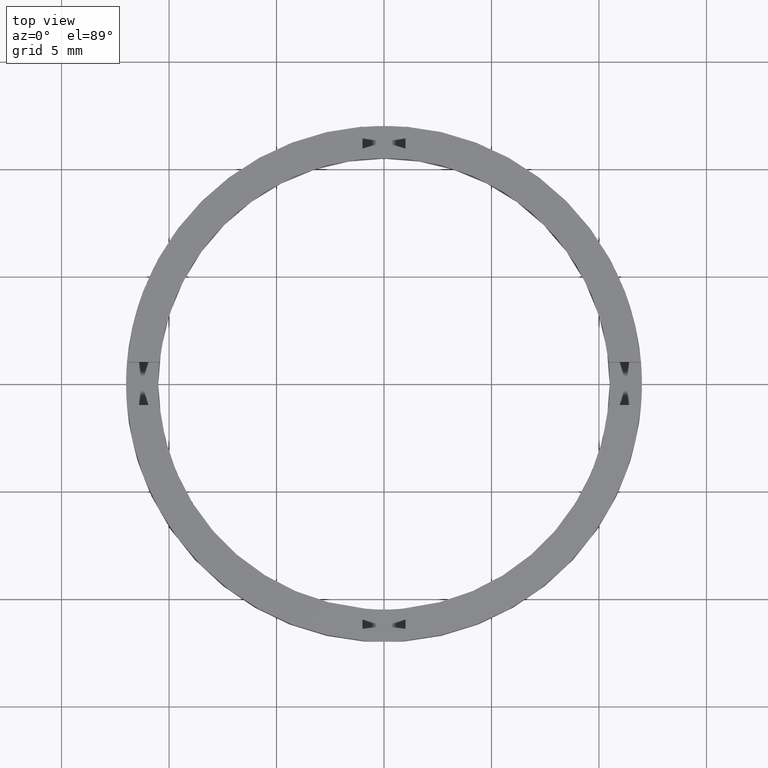
[diagram: clean part render]
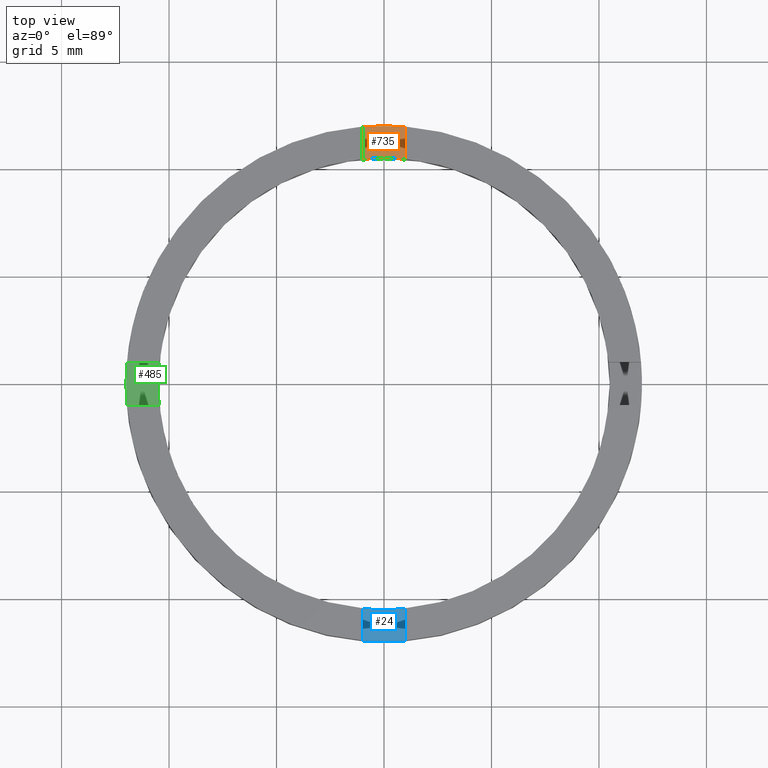
[diagram: same view with three faces highlighted in distinct colors, each labeled with its STEP entity id]
A machine part, top view with three faces highlighted in distinct colors.
Their STEP definitions:

[orange] entity #735 — the highlighted planar face has unit normal (0, -0, 1).
#1 = DIRECTION ( 'NONE',  ( 0.000000000000000000, -0.000000000000000000, 1.000000000000000000 ) ) ;
#17 = CIRCLE ( 'NONE', #315, 10.49999999999999822 ) ;
#49 = EDGE_CURVE ( 'NONE', #216, #81, #663, .T. ) ;
#58 = CARTESIAN_POINT ( 'NONE',  ( 0.9999999999999754641, 2.000000000000001776, 1.500000000000000000 ) ) ;
#61 = CARTESIAN_POINT ( 'NONE',  ( -1.000000000000024425, 10.45227248018343325, 1.500000000000000000 ) ) ;
#74 = AXIS2_PLACEMENT_3D ( 'NONE', #495, #1, #499 ) ;
#81 = VERTEX_POINT ( 'NONE', #611 ) ;
#87 = DIRECTION ( 'NONE',  ( -0.000000000000000000, -1.000000000000000000, -0.000000000000000000 ) ) ;
#97 = VERTEX_POINT ( 'NONE', #61 ) ;
#98 = DIRECTION ( 'NONE',  ( 1.000000000000000000, 0.000000000000000000, 0.000000000000000000 ) ) ;
#162 = VECTOR ( 'NONE', #317, 1000.000000000000000 ) ;
#167 = CARTESIAN_POINT ( 'NONE',  ( 0.000000000000000000, 0.000000000000000000, 1.500000000000000000 ) ) ;
#199 = CARTESIAN_POINT ( 'NONE',  ( -1.000000000000024425, 2.000000000000001776, 1.500000000000000000 ) ) ;
#216 = VERTEX_POINT ( 'NONE', #217 ) ;
#217 = CARTESIAN_POINT ( 'NONE',  ( 0.9999999999999754641, 10.45227248018343680, 1.500000000000000000 ) ) ;
#315 = AXIS2_PLACEMENT_3D ( 'NONE', #167, #493, #98 ) ;
#317 = DIRECTION ( 'NONE',  ( 0.000000000000000000, 1.000000000000000000, 0.000000000000000000 ) ) ;
#328 = DIRECTION ( 'NONE',  ( 0.000000000000000000, -0.000000000000000000, 1.000000000000000000 ) ) ;
#340 = ORIENTED_EDGE ( 'NONE', *, *, #49, .T. ) ;
#355 = ORIENTED_EDGE ( 'NONE', *, *, #486, .T. ) ;
#359 = ORIENTED_EDGE ( 'NONE', *, *, #541, .T. ) ;
#416 = CARTESIAN_POINT ( 'NONE',  ( -1.000000000000024425, 11.95826074310139830, 1.500000000000000000 ) ) ;
#427 = VECTOR ( 'NONE', #87, 1000.000000000000000 ) ;
#433 = PLANE ( 'NONE',  #74 ) ;
#486 = EDGE_CURVE ( 'NONE', #719, #97, #687, .T. ) ;
#493 = DIRECTION ( 'NONE',  ( 0.000000000000000000, -0.000000000000000000, 1.000000000000000000 ) ) ;
#495 = CARTESIAN_POINT ( 'NONE',  ( 0.000000000000000000, 0.000000000000000000, 1.500000000000000000 ) ) ;
#499 = DIRECTION ( 'NONE',  ( 1.000000000000000000, 0.000000000000000000, -0.000000000000000000 ) ) ;
#514 = ORIENTED_EDGE ( 'NONE', *, *, #679, .F. ) ;
#541 = EDGE_CURVE ( 'NONE', #81, #719, #697, .T. ) ;
#552 = AXIS2_PLACEMENT_3D ( 'NONE', #725, #328, #775 ) ;
#555 = FACE_OUTER_BOUND ( 'NONE', #709, .T. ) ;
#611 = CARTESIAN_POINT ( 'NONE',  ( 0.9999999999999754641, 11.95826074310140363, 1.500000000000000000 ) ) ;
#663 = LINE ( 'NONE', #58, #162 ) ;
#679 = EDGE_CURVE ( 'NONE', #216, #97, #17, .T. ) ;
#687 = LINE ( 'NONE', #199, #427 ) ;
#697 = CIRCLE ( 'NONE', #552, 12.00000000000000178 ) ;
#709 = EDGE_LOOP ( 'NONE', ( #359, #355, #514, #340 ) ) ;
#719 = VERTEX_POINT ( 'NONE', #416 ) ;
#725 = CARTESIAN_POINT ( 'NONE',  ( 0.000000000000000000, 0.000000000000000000, 1.500000000000000000 ) ) ;
#735 = ADVANCED_FACE ( 'NONE', ( #555 ), #433, .T. ) ;
#775 = DIRECTION ( 'NONE',  ( 1.000000000000000000, 0.000000000000000000, 0.000000000000000000 ) ) ;

[blue] entity #24 — the highlighted planar face has unit normal (-0, 0, 1).
#10 = VERTEX_POINT ( 'NONE', #75 ) ;
#24 = ADVANCED_FACE ( 'NONE', ( #681 ), #506, .T. ) ;
#52 = DIRECTION ( 'NONE',  ( 1.000000000000000000, 0.000000000000000000, 0.000000000000000000 ) ) ;
#75 = CARTESIAN_POINT ( 'NONE',  ( 0.9999999999998361311, -10.45227248018345101, 1.500000000000000000 ) ) ;
#79 = CARTESIAN_POINT ( 'NONE',  ( -1.000000000000163869, -10.45227248018341903, 1.500000000000000000 ) ) ;
#80 = EDGE_CURVE ( 'NONE', #114, #352, #141, .T. ) ;
#106 = CARTESIAN_POINT ( 'NONE',  ( 0.9999999999998363531, -11.95826074310141429, 1.500000000000000000 ) ) ;
#110 = ORIENTED_EDGE ( 'NONE', *, *, #727, .T. ) ;
#114 = VERTEX_POINT ( 'NONE', #570 ) ;
#138 = AXIS2_PLACEMENT_3D ( 'NONE', #548, #738, #52 ) ;
#141 = CIRCLE ( 'NONE', #654, 12.00000000000000178 ) ;
#211 = DIRECTION ( 'NONE',  ( -0.000000000000000000, 0.000000000000000000, 1.000000000000000000 ) ) ;
#251 = CARTESIAN_POINT ( 'NONE',  ( -1.000000000000164979, -2.000000000000182077, 1.500000000000000000 ) ) ;
#277 = DIRECTION ( 'NONE',  ( -0.000000000000000000, 0.000000000000000000, 1.000000000000000000 ) ) ;
#281 = EDGE_CURVE ( 'NONE', #455, #10, #389, .T. ) ;
#295 = VECTOR ( 'NONE', #338, 1000.000000000000000 ) ;
#300 = LINE ( 'NONE', #730, #295 ) ;
#336 = EDGE_CURVE ( 'NONE', #455, #114, #662, .T. ) ;
#338 = DIRECTION ( 'NONE',  ( -1.301042606982605567E-16, 1.000000000000000000, -0.000000000000000000 ) ) ;
#352 = VERTEX_POINT ( 'NONE', #106 ) ;
#389 = CIRCLE ( 'NONE', #138, 10.49999999999999822 ) ;
#428 = AXIS2_PLACEMENT_3D ( 'NONE', #686, #211, #601 ) ;
#438 = ORIENTED_EDGE ( 'NONE', *, *, #281, .F. ) ;
#455 = VERTEX_POINT ( 'NONE', #79 ) ;
#503 = EDGE_LOOP ( 'NONE', ( #608, #110, #438, #621 ) ) ;
#506 = PLANE ( 'NONE',  #428 ) ;
#513 = CARTESIAN_POINT ( 'NONE',  ( 0.000000000000000000, 0.000000000000000000, 1.500000000000000000 ) ) ;
#548 = CARTESIAN_POINT ( 'NONE',  ( 0.000000000000000000, 0.000000000000000000, 1.500000000000000000 ) ) ;
#565 = DIRECTION ( 'NONE',  ( 1.000000000000000000, 0.000000000000000000, 0.000000000000000000 ) ) ;
#570 = CARTESIAN_POINT ( 'NONE',  ( -1.000000000000163647, -11.95826074310138765, 1.500000000000000000 ) ) ;
#588 = DIRECTION ( 'NONE',  ( 1.301042606982605567E-16, -1.000000000000000000, 0.000000000000000000 ) ) ;
#601 = DIRECTION ( 'NONE',  ( 1.000000000000000000, 0.000000000000000000, 0.000000000000000000 ) ) ;
#608 = ORIENTED_EDGE ( 'NONE', *, *, #80, .T. ) ;
#621 = ORIENTED_EDGE ( 'NONE', *, *, #336, .T. ) ;
#654 = AXIS2_PLACEMENT_3D ( 'NONE', #513, #277, #565 ) ;
#659 = VECTOR ( 'NONE', #588, 1000.000000000000000 ) ;
#662 = LINE ( 'NONE', #251, #659 ) ;
#681 = FACE_OUTER_BOUND ( 'NONE', #503, .T. ) ;
#686 = CARTESIAN_POINT ( 'NONE',  ( 0.000000000000000000, 0.000000000000000000, 1.500000000000000000 ) ) ;
#727 = EDGE_CURVE ( 'NONE', #352, #10, #300, .T. ) ;
#730 = CARTESIAN_POINT ( 'NONE',  ( 0.9999999999998350209, -2.000000000000182077, 1.500000000000000000 ) ) ;
#738 = DIRECTION ( 'NONE',  ( -0.000000000000000000, 0.000000000000000000, 1.000000000000000000 ) ) ;

[green] entity #485 — the highlighted planar face has unit normal (0, 0, 1).
#3 = PLANE ( 'NONE',  #321 ) ;
#42 = AXIS2_PLACEMENT_3D ( 'NONE', #331, #478, #403 ) ;
#50 = CARTESIAN_POINT ( 'NONE',  ( 0.000000000000000000, 0.000000000000000000, 1.500000000000000000 ) ) ;
#71 = DIRECTION ( 'NONE',  ( -1.000000000000000000, -1.734723475976807341E-16, 0.000000000000000000 ) ) ;
#72 = VERTEX_POINT ( 'NONE', #462 ) ;
#84 = DIRECTION ( 'NONE',  ( 0.000000000000000000, 0.000000000000000000, 1.000000000000000000 ) ) ;
#103 = DIRECTION ( 'NONE',  ( 0.000000000000000000, 0.000000000000000000, 1.000000000000000000 ) ) ;
#122 = CIRCLE ( 'NONE', #42, 10.49999999999999822 ) ;
#123 = EDGE_CURVE ( 'NONE', #531, #237, #677, .T. ) ;
#169 = CIRCLE ( 'NONE', #279, 10.49999999999999822 ) ;
#176 = VECTOR ( 'NONE', #755, 1000.000000000000000 ) ;
#183 = ORIENTED_EDGE ( 'NONE', *, *, #123, .T. ) ;
#185 = ORIENTED_EDGE ( 'NONE', *, *, #562, .T. ) ;
#224 = CARTESIAN_POINT ( 'NONE',  ( -12.00000000000000178, 0.000000000000000000, 1.500000000000000000 ) ) ;
#232 = CARTESIAN_POINT ( 'NONE',  ( 0.000000000000000000, 0.000000000000000000, 1.500000000000000000 ) ) ;
#237 = VERTEX_POINT ( 'NONE', #717 ) ;
#269 = VERTEX_POINT ( 'NONE', #523 ) ;
#271 = VERTEX_POINT ( 'NONE', #224 ) ;
#279 = AXIS2_PLACEMENT_3D ( 'NONE', #232, #504, #289 ) ;
#289 = DIRECTION ( 'NONE',  ( 1.000000000000000000, 0.000000000000000000, 0.000000000000000000 ) ) ;
#308 = CARTESIAN_POINT ( 'NONE',  ( -10.45227248018343680, 0.9999999999999783507, 1.500000000000000000 ) ) ;
#309 = EDGE_CURVE ( 'NONE', #271, #269, #676, .T. ) ;
#311 = EDGE_CURVE ( 'NONE', #72, #544, #169, .T. ) ;
#321 = AXIS2_PLACEMENT_3D ( 'NONE', #50, #103, #764 ) ;
#331 = CARTESIAN_POINT ( 'NONE',  ( 0.000000000000000000, 0.000000000000000000, 1.500000000000000000 ) ) ;
#374 = DIRECTION ( 'NONE',  ( 0.000000000000000000, 0.000000000000000000, 1.000000000000000000 ) ) ;
#403 = DIRECTION ( 'NONE',  ( 1.000000000000000000, 0.000000000000000000, 0.000000000000000000 ) ) ;
#425 = FACE_OUTER_BOUND ( 'NONE', #635, .T. ) ;
#431 = ORIENTED_EDGE ( 'NONE', *, *, #563, .F. ) ;
#456 = ORIENTED_EDGE ( 'NONE', *, *, #599, .T. ) ;
#462 = CARTESIAN_POINT ( 'NONE',  ( -10.49999999999999822, 0.000000000000000000, 1.500000000000000000 ) ) ;
#467 = CARTESIAN_POINT ( 'NONE',  ( -2.000000000000185629, -1.000000000000020428, 1.500000000000000000 ) ) ;
#478 = DIRECTION ( 'NONE',  ( 0.000000000000000000, 0.000000000000000000, 1.000000000000000000 ) ) ;
#485 = ADVANCED_FACE ( 'NONE', ( #425 ), #3, .T. ) ;
#504 = DIRECTION ( 'NONE',  ( 0.000000000000000000, 0.000000000000000000, 1.000000000000000000 ) ) ;
#521 = DIRECTION ( 'NONE',  ( 1.000000000000000000, 0.000000000000000000, 0.000000000000000000 ) ) ;
#523 = CARTESIAN_POINT ( 'NONE',  ( -11.95826074310139830, -1.000000000000022204, 1.500000000000000000 ) ) ;
#526 = ORIENTED_EDGE ( 'NONE', *, *, #311, .F. ) ;
#528 = CARTESIAN_POINT ( 'NONE',  ( 0.000000000000000000, 0.000000000000000000, 1.500000000000000000 ) ) ;
#531 = VERTEX_POINT ( 'NONE', #308 ) ;
#532 = CARTESIAN_POINT ( 'NONE',  ( -2.000000000000185629, 0.9999999999999796829, 1.500000000000000000 ) ) ;
#544 = VERTEX_POINT ( 'NONE', #760 ) ;
#562 = EDGE_CURVE ( 'NONE', #269, #544, #699, .T. ) ;
#563 = EDGE_CURVE ( 'NONE', #531, #72, #122, .T. ) ;
#590 = AXIS2_PLACEMENT_3D ( 'NONE', #596, #84, #652 ) ;
#596 = CARTESIAN_POINT ( 'NONE',  ( 0.000000000000000000, 0.000000000000000000, 1.500000000000000000 ) ) ;
#599 = EDGE_CURVE ( 'NONE', #237, #271, #737, .T. ) ;
#635 = EDGE_LOOP ( 'NONE', ( #456, #780, #185, #526, #431, #183 ) ) ;
#646 = AXIS2_PLACEMENT_3D ( 'NONE', #528, #374, #521 ) ;
#652 = DIRECTION ( 'NONE',  ( 1.000000000000000000, 0.000000000000000000, 0.000000000000000000 ) ) ;
#676 = CIRCLE ( 'NONE', #590, 12.00000000000000178 ) ;
#677 = LINE ( 'NONE', #532, #698 ) ;
#698 = VECTOR ( 'NONE', #71, 1000.000000000000000 ) ;
#699 = LINE ( 'NONE', #467, #176 ) ;
#717 = CARTESIAN_POINT ( 'NONE',  ( -11.95826074310140186, 0.9999999999999779066, 1.500000000000000000 ) ) ;
#737 = CIRCLE ( 'NONE', #646, 12.00000000000000178 ) ;
#755 = DIRECTION ( 'NONE',  ( 1.000000000000000000, 1.734723475976807341E-16, -0.000000000000000000 ) ) ;
#760 = CARTESIAN_POINT ( 'NONE',  ( -10.45227248018343325, -1.000000000000021760, 1.500000000000000000 ) ) ;
#764 = DIRECTION ( 'NONE',  ( 1.000000000000000000, 0.000000000000000000, -0.000000000000000000 ) ) ;
#780 = ORIENTED_EDGE ( 'NONE', *, *, #309, .T. ) ;